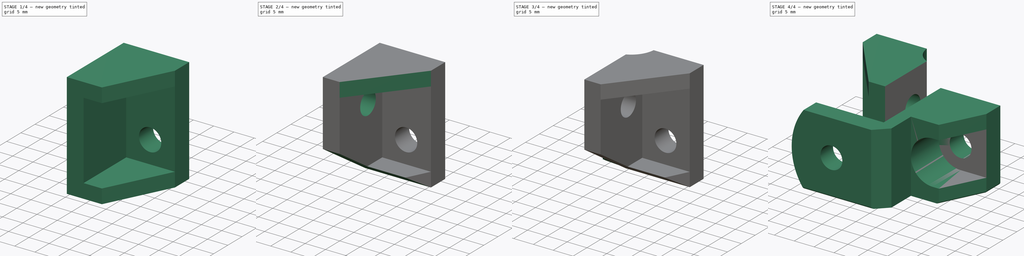
[diagram: build sequence overview — one tinted view per stage of 4, left to right]
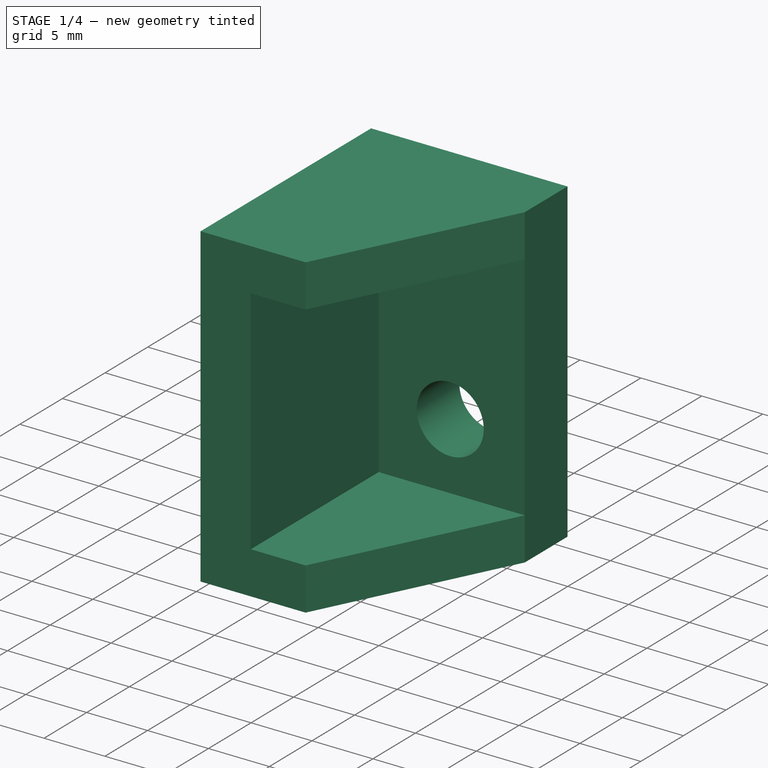
[diagram: stage 1 of 4 — iso view after this stage's code; geometry added in this stage tinted green]
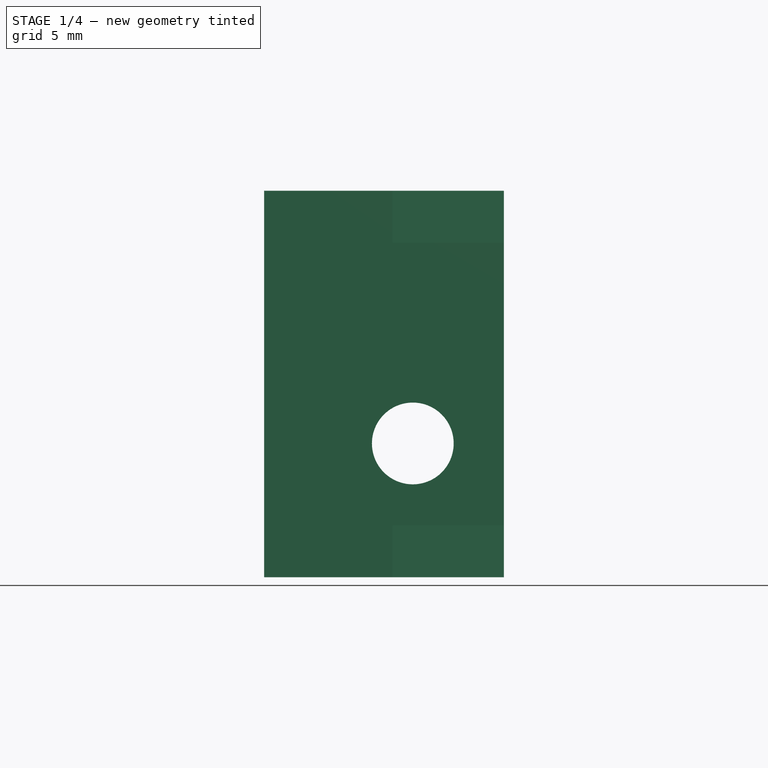
[diagram: stage 1 of 4 — front view after this stage's code; geometry added in this stage tinted green]
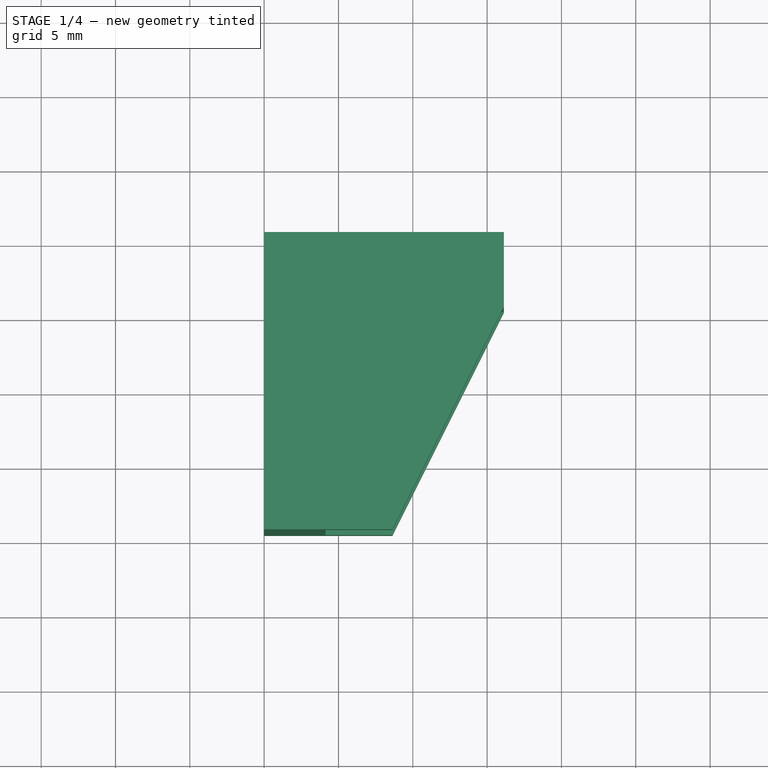
[diagram: stage 1 of 4 — top view after this stage's code; geometry added in this stage tinted green]
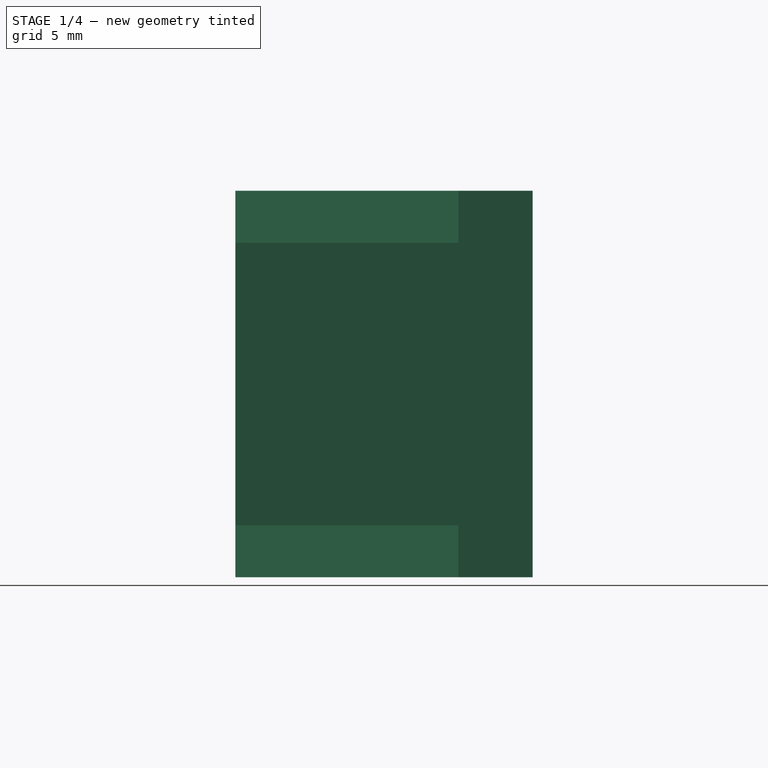
[diagram: stage 1 of 4 — right view after this stage's code; geometry added in this stage tinted green]
FCSTD DOCUMENT  (FreeCAD 0.17R11850 (Git))
Label: electronics_chassis_mount_front_v1
License: All rights reserved
LicenseURL: http://en.wikipedia.org/wiki/All_rights_reserved
objects: Sketcher::SketchObject×8, PartDesign::Pocket×6, PartDesign::Pad×2, Part::FeaturePython×1, PartDesign::Chamfer×1, PartDesign::Fillet×1, PartDesign::Body×1, Part::Mirroring×1
note: 29 computed .brp shape members not serialized (recipe doc carries the construction recipe); baked Part::Feature solids carry a one-line shape summary decoded from their .brp

FEATURE [Sketcher::SketchObject] Sketch
  MapMode = 5
  Support = -> [XY_Plane]
  sketch-geometry (5):
    g0: LineSegment StartX=0 StartY=20.5 StartZ=0 EndX=16.125 EndY=20.5 EndZ=0
    g1: LineSegment StartX=16.125 StartY=20.5 StartZ=0 EndX=16.125 EndY=15.5 EndZ=0
    g2: LineSegment StartX=16.125 StartY=15.5 StartZ=0 EndX=8.625 EndY=0.5 EndZ=0
    g3: LineSegment StartX=8.625 StartY=0.5 StartZ=0 EndX=0 EndY=0.5 EndZ=0
    g4: LineSegment StartX=0 StartY=0.5 StartZ=0 EndX=0 EndY=20.5 EndZ=0
  constraints (15):
    c: PointOnObject(g0,g-2)
    c: Horizontal(g0)
    c: Coincident(g0,g1)
    c: Vertical(g1)
    c: Coincident(g1,g2)
    c: Coincident(g2,g3)
    c: PointOnObject(g3,g-2)
    c: Horizontal(g3)
    c: Coincident(g3,g4)
    c: Coincident(g4,g0)
    c: DistanceY(g4,g4) = 20
    c: DistanceY(g3) = 0.5
    c: DistanceX(g0,g0) = 16.125
    c: DistanceY(g1,g1) = 5
    c: DistanceX(g3,g3) = 8.625
FEATURE [PartDesign::Pad] Pad
  Length = 26
  Length2 = 100
  Profile = -> Sketch
  Type = 0
FEATURE [Sketcher::SketchObject] Sketch001
  ExternalGeometry = -> [Pad]
  MapMode = 5
  Placement = pos=(0,0.5,0) rot=(1,0,0;1.5708rad)
  Support = -> [Pad]
  sketch-geometry (4):
    g0: LineSegment StartX=16.125 StartY=3.5 StartZ=0 EndX=4.125 EndY=3.5 EndZ=0
    g1: LineSegment StartX=4.125 StartY=3.5 StartZ=0 EndX=4.125 EndY=22.5 EndZ=0
    g2: LineSegment StartX=4.125 StartY=22.5 StartZ=0 EndX=16.125 EndY=22.5 EndZ=0
    g3: LineSegment StartX=16.125 StartY=22.5 StartZ=0 EndX=16.125 EndY=3.5 EndZ=0
  constraints (12):
    c: Coincident(g0,g1)
    c: Coincident(g1,g2)
    c: Coincident(g2,g3)
    c: Coincident(g3,g0)
    c: Horizontal(g0)
    c: Horizontal(g2)
    c: Vertical(g1)
    c: Vertical(g3)
    c: PointOnObject(g0,g-4)
    c: DistanceY(g-4,g0) = 3.5
    c: DistanceY(g3,g3) = 19
    c: DistanceX(g2,g2) = 12
FEATURE [PartDesign::Pocket] Pocket
  BaseFeature = -> Pad
  Length = 15
  Profile = -> Sketch001
  Type = 0
FEATURE [Sketcher::SketchObject] Sketch003
  ExternalGeometry = -> [Pocket]
  MapMode = 5
  Placement = pos=(0,15.5,0) rot=(1,0,0;1.5708rad)
  Support = -> [Pocket]
  sketch-geometry (1):
    g0: Circle CenterX=10 CenterY=9 CenterZ=0 NormalX=0 NormalY=0 NormalZ=1 Radius=2.75
  constraints (3):
    c: DistanceY(g-3,g0) = 5.5
    c: Radius(g0) = 2.75
    c: DistanceX(g0) = 10
FEATURE [PartDesign::Pocket] Pocket001
  BaseFeature = -> Pocket
  Length = 5
  Profile = -> Sketch003
  Type = 0
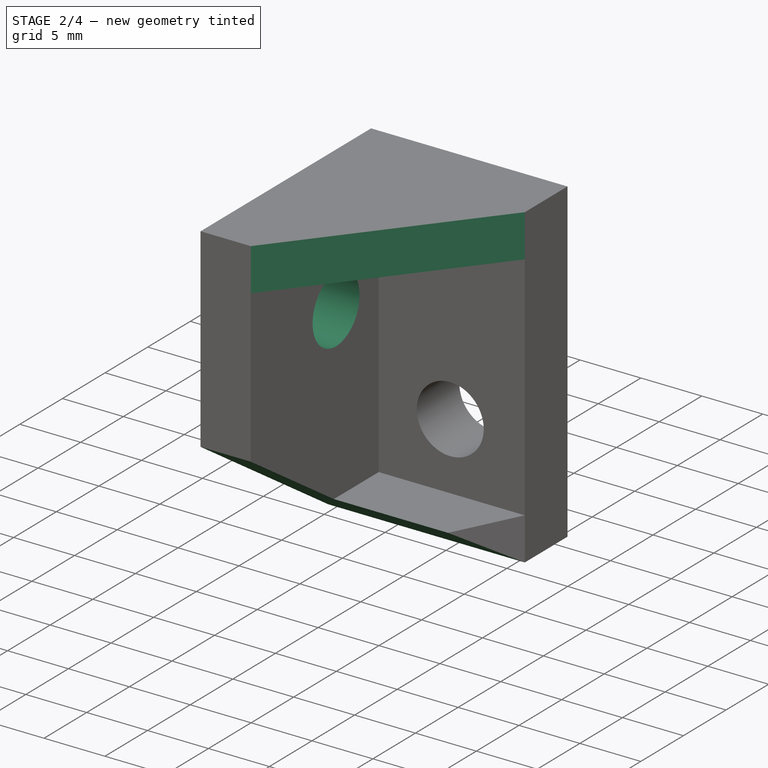
[diagram: stage 2 of 4 — iso view after this stage's code; geometry added in this stage tinted green]
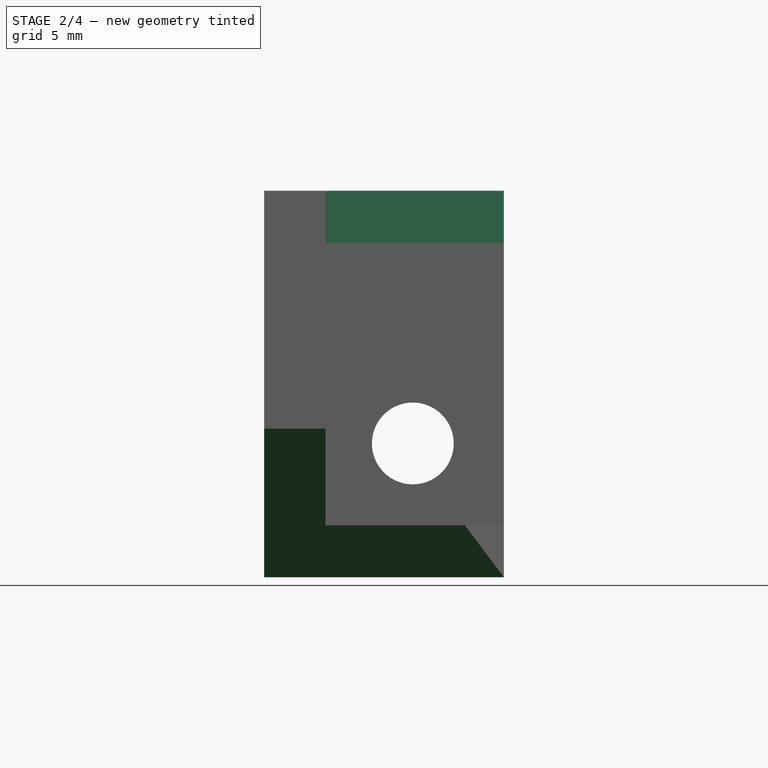
[diagram: stage 2 of 4 — front view after this stage's code; geometry added in this stage tinted green]
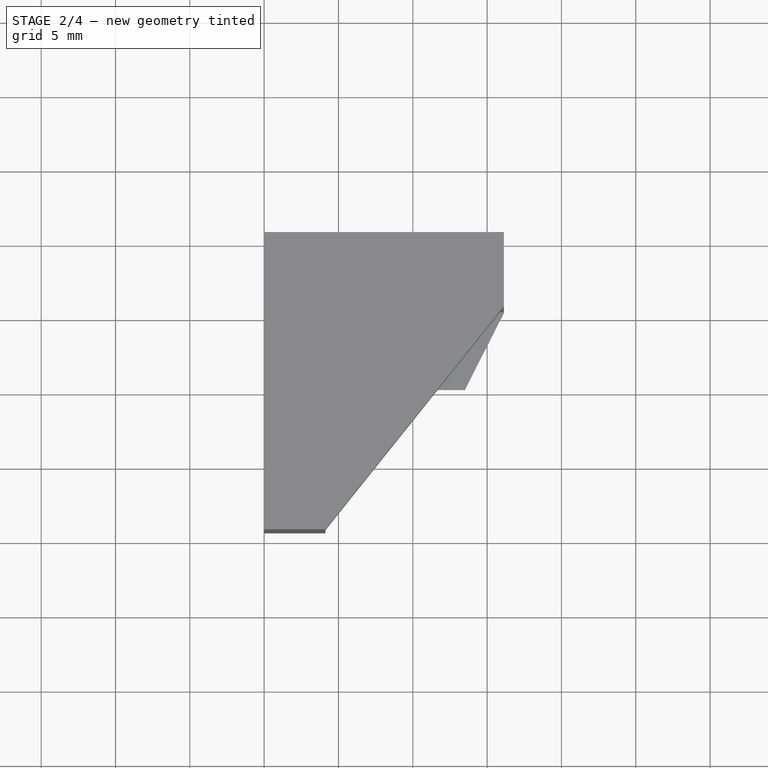
[diagram: stage 2 of 4 — top view after this stage's code; geometry added in this stage tinted green]
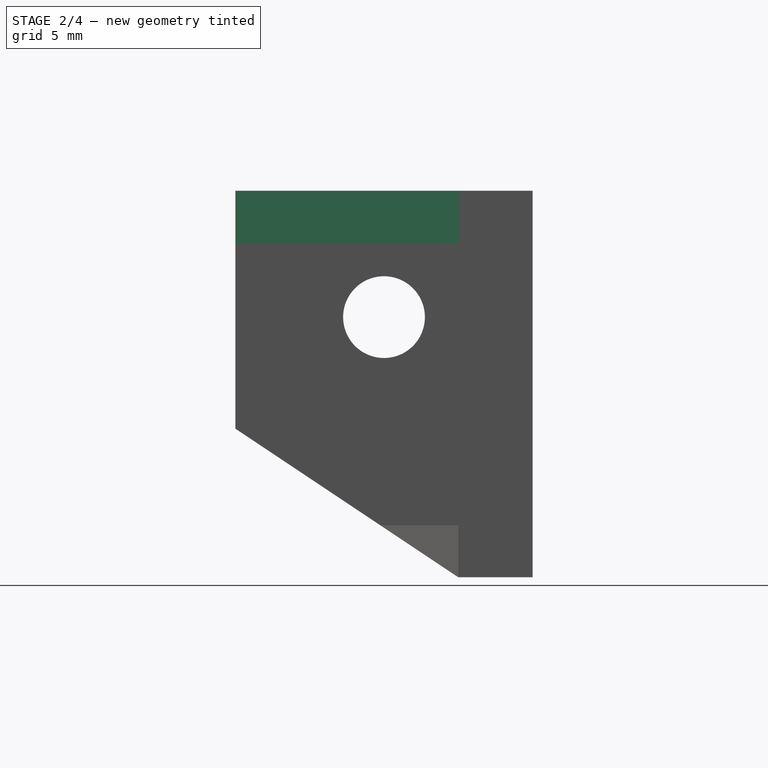
[diagram: stage 2 of 4 — right view after this stage's code; geometry added in this stage tinted green]
FEATURE [Sketcher::SketchObject] Sketch004
  ExternalGeometry = -> [Pocket001]
  MapMode = 5
  Placement = pos=(16.125,0,0) rot=(0.57735,0.57735,0.57735;2.0944rad)
  Support = -> [Pocket001]
  sketch-geometry (3):
    g0: LineSegment [constr] StartX=15.5 StartY=9 StartZ=0 EndX=15.5 EndY=13.5 EndZ=0
    g1: Circle [constr] CenterX=10.5 CenterY=17.5 CenterZ=0 NormalX=0 NormalY=0 NormalZ=1 Radius=4.5
    g2: Circle CenterX=10.5 CenterY=17.5 CenterZ=0 NormalX=0 NormalY=0 NormalZ=1 Radius=2.75
  constraints (8):
    c: Coincident(g0,g-3)
    c: Vertical(g0)
    c: DistanceY(g0,g0) = 4.5
    c: Radius(g1) = 4.5
    c: DistanceX(g1,g-5) = 10
    c: DistanceY(g1) = 17.5
    c: Coincident(g2,g1)
    c: Radius(g2) = 2.75
FEATURE [PartDesign::Pocket] Pocket002
  BaseFeature = -> Pocket001
  Length = 5
  Profile = -> Sketch004
  Type = 1
FEATURE [Sketcher::SketchObject] Sketch005
  ExternalGeometry = -> [Pocket002]
  MapMode = 5
  Placement = pos=(16.125,0,0) rot=(0.57735,0.57735,0.57735;2.0944rad)
  Support = -> [Pocket002]
  sketch-geometry (3):
    g0: LineSegment StartX=15.5 StartY=0 StartZ=0 EndX=0.5 EndY=10 EndZ=0
    g1: LineSegment StartX=0.5 StartY=10 StartZ=0 EndX=0.5 EndY=0 EndZ=0
    g2: LineSegment StartX=0.5 StartY=0 StartZ=0 EndX=15.5 EndY=0 EndZ=0
  constraints (4):
    c: Coincident(g0,g1)
    c: Coincident(g1,g2)
    c: Coincident(g2,g0)
    c: DistanceY(g1,g1) = 10
FEATURE [PartDesign::Pocket] Pocket003
  BaseFeature = -> Pocket002
  Length = 5
  Profile = -> Sketch005
  Type = 1
FEATURE [Sketcher::SketchObject] Sketch006
  ExternalGeometry = -> [Pocket003]
  MapMode = 5
  Placement = pos=(0,0,26) rot=(0,0,1;0rad)
  Support = -> [Pocket003]
  sketch-geometry (3):
    g0: LineSegment StartX=4.125 StartY=0.5 StartZ=0 EndX=16.125 EndY=15.5 EndZ=0
    g1: LineSegment StartX=16.125 StartY=15.5 StartZ=0 EndX=8.625 EndY=0.5 EndZ=0
    g2: LineSegment StartX=8.625 StartY=0.5 StartZ=0 EndX=4.125 EndY=0.5 EndZ=0
  constraints (3):
    c: Coincident(g0,g1)
    c: Coincident(g1,g2)
    c: Coincident(g2,g0)
FEATURE [PartDesign::Pocket] Pocket004
  BaseFeature = -> Pocket003
  Length = 5
  Profile = -> Sketch006
  Type = 0
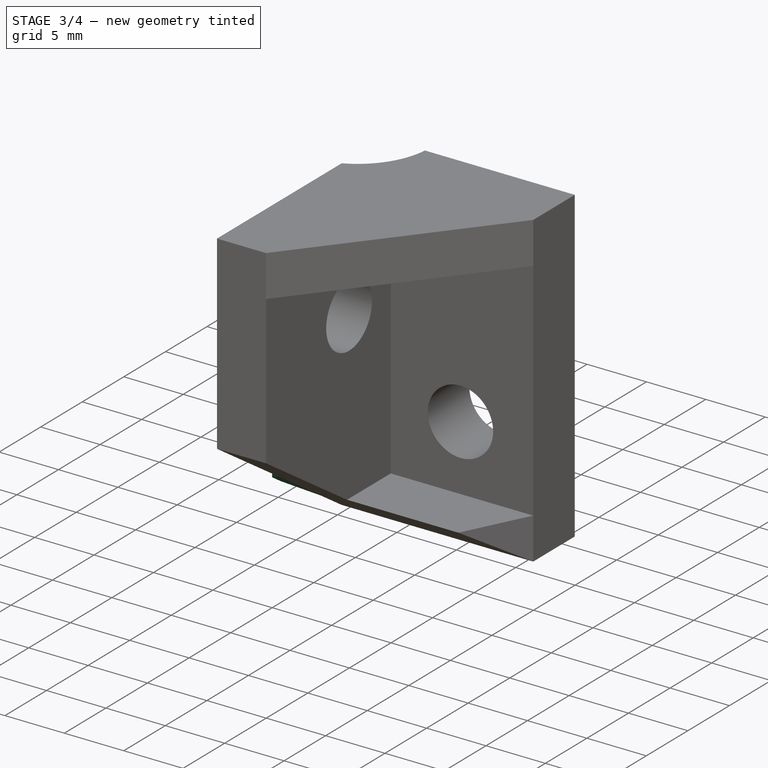
[diagram: stage 3 of 4 — iso view after this stage's code; geometry added in this stage tinted green]
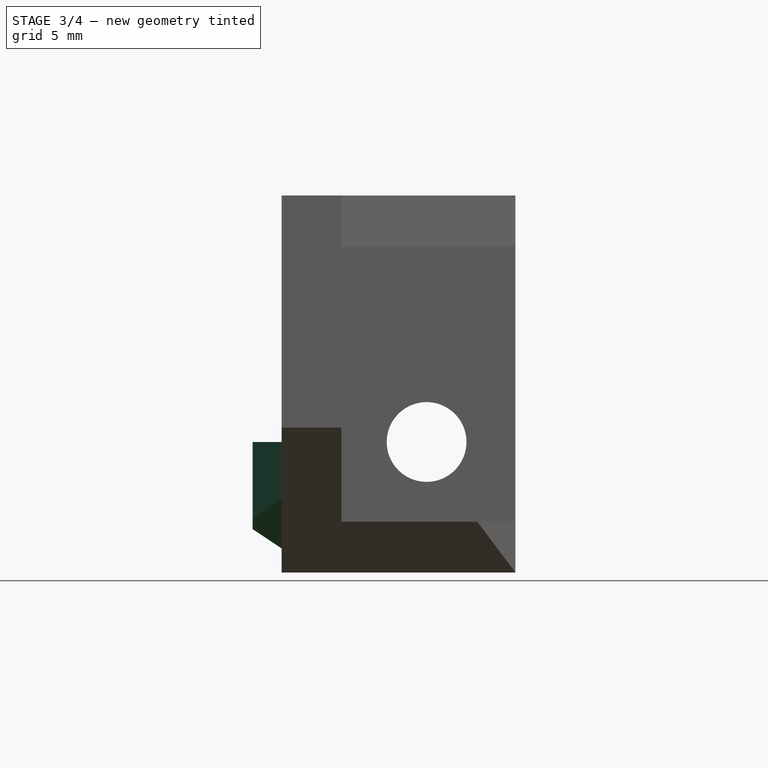
[diagram: stage 3 of 4 — front view after this stage's code; geometry added in this stage tinted green]
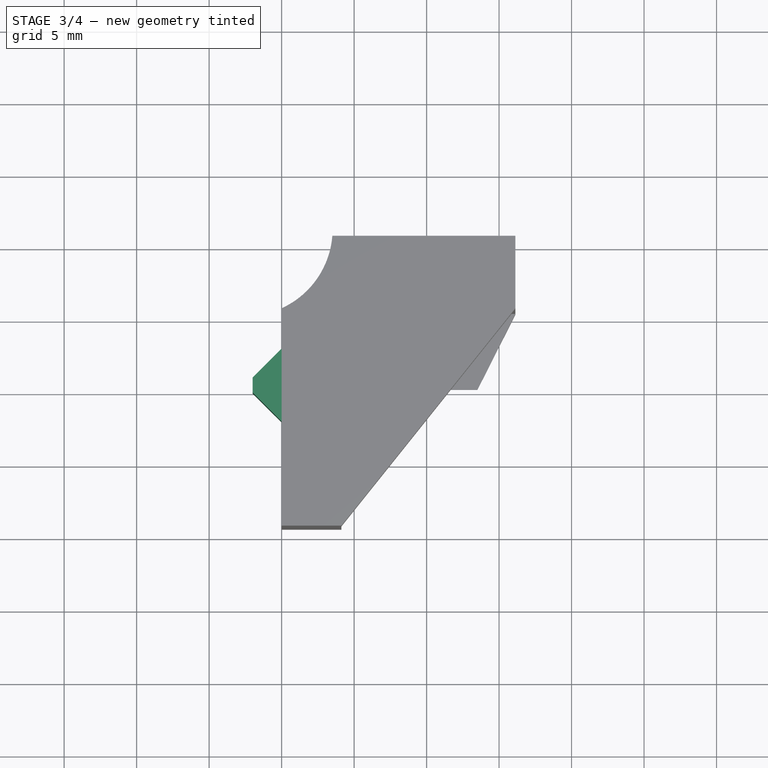
[diagram: stage 3 of 4 — top view after this stage's code; geometry added in this stage tinted green]
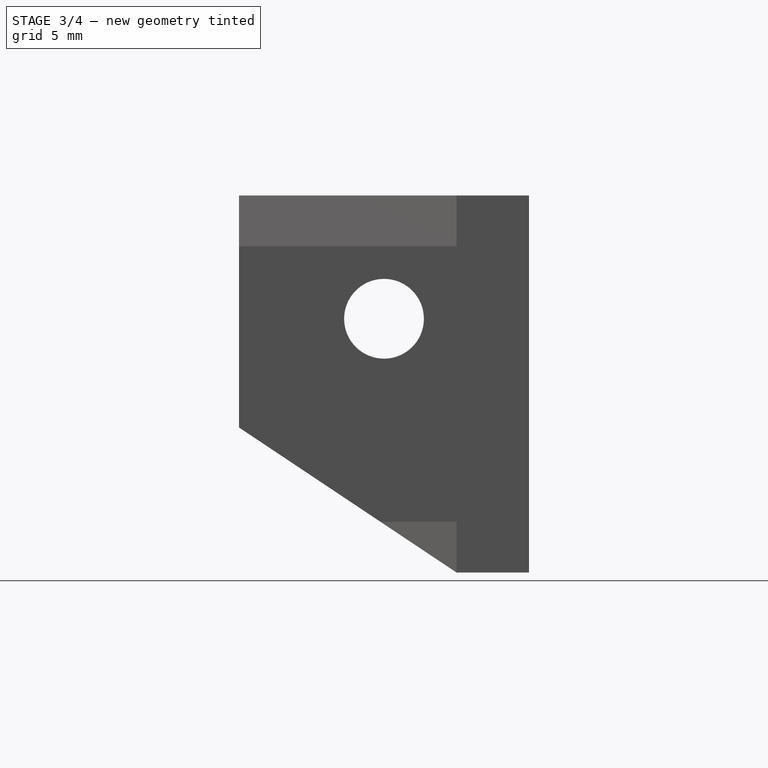
[diagram: stage 3 of 4 — right view after this stage's code; geometry added in this stage tinted green]
FEATURE [Sketcher::SketchObject] Sketch007
  ExternalGeometry = -> [Pocket004]
  MapMode = 5
  Placement = pos=(0,0,0) rot=(0.57735,-0.57735,-0.57735;2.0944rad)
  Support = -> [Pocket004]
  sketch-geometry (4):
    g0: LineSegment StartX=-13 StartY=1.66667 StartZ=0 EndX=-13 EndY=9 EndZ=0
    g1: LineSegment StartX=-13 StartY=9 StartZ=0 EndX=-8 EndY=9 EndZ=0
    g2: LineSegment StartX=-8 StartY=9 StartZ=0 EndX=-8 EndY=5 EndZ=0
    g3: LineSegment StartX=-8 StartY=5 StartZ=0 EndX=-13 EndY=1.66667 EndZ=0
  constraints (12):
    c: Coincident(g0,g1)
    c: Coincident(g1,g2)
    c: Coincident(g2,g3)
    c: Coincident(g0,g3)
    c: Vertical(g0)
    c: Vertical(g2)
    c: Horizontal(g1)
    c: DistanceX(g1,g1) = 5
    c: DistanceY(g2,g2) = 4
    c: PointOnObject(g2,g-4)
    c: PointOnObject(g0,g-4)
    c: DistanceX(g-3,g1) = 2.5
FEATURE [PartDesign::Pad] Pad001
  BaseFeature = -> Pocket004
  Length = 2
  Length2 = 100
  Profile = -> Sketch007
  Type = 0
FEATURE [Sketcher::SketchObject] Sketch008
  ExternalGeometry = -> [Pad001]
  MapMode = 5
  Placement = pos=(0,0,0) rot=(1,0,0;3.14159rad)
  Support = -> [Pad001]
  sketch-geometry (3):
    g0: ArcOfCircle CenterX=-2.48215 CenterY=-20.9625 CenterZ=0 NormalX=0 NormalY=0 NormalZ=1 Radius=6 StartAngle=0.0771604 EndAngle=1.14429
    g1: LineSegment StartX=-2e-12 StartY=-15.5 StartZ=0 EndX=0 EndY=-20.5 EndZ=0
    g2: LineSegment StartX=0 StartY=-20.5 StartZ=0 EndX=3.5 EndY=-20.5 EndZ=0
  constraints (8):
    c: Coincident(g0,g-3)
    c: PointOnObject(g0,g-4)
    c: Coincident(g1,g2)
    c: Coincident(g0,g2)
    c: Coincident(g1,g-4)
    c: DistanceX(g2,g2) = 3.5
    c: Radius(g0) = 6
    c: Coincident(g0,g1)
FEATURE [PartDesign::Pocket] Pocket005
  BaseFeature = -> Pad001
  Length = 5
  Profile = -> Sketch008
  Type = 1
FEATURE [PartDesign::Chamfer] Chamfer
  Base = -> Pocket005 [Edge51,Edge48]
  BaseFeature = -> Pocket005
  Size = 1.99
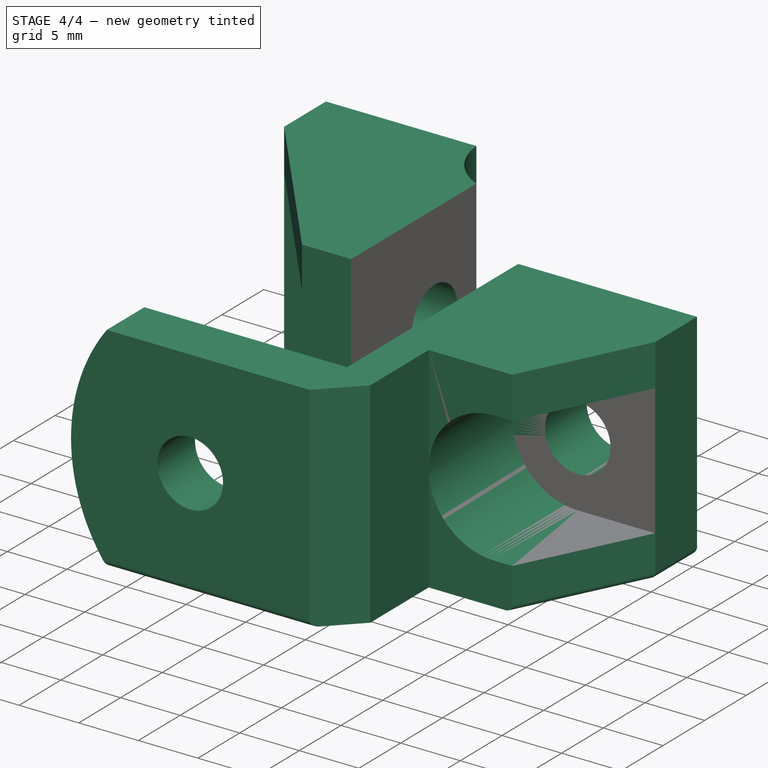
[diagram: stage 4 of 4 — iso view after this stage's code; geometry added in this stage tinted green]
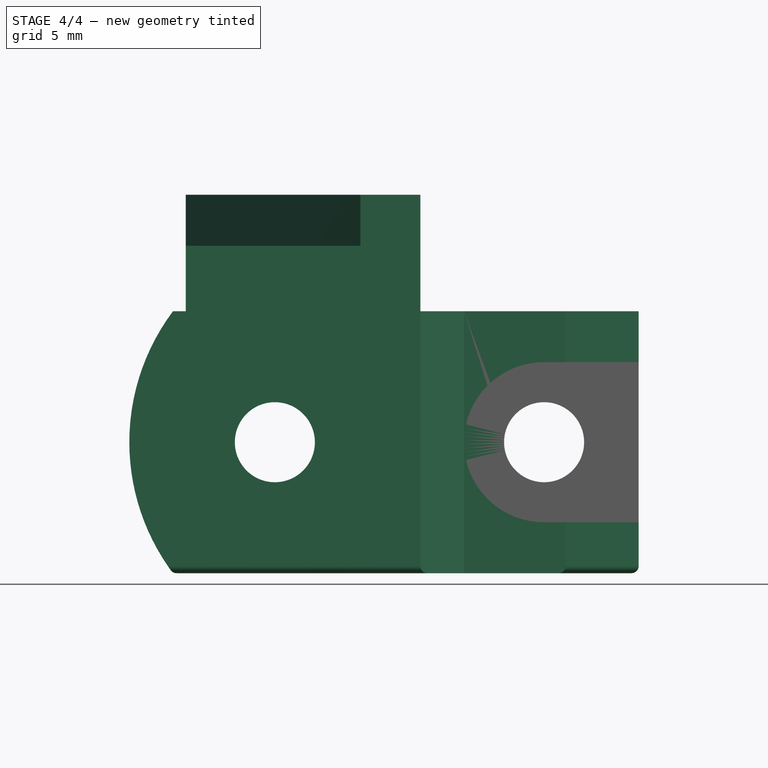
[diagram: stage 4 of 4 — front view after this stage's code; geometry added in this stage tinted green]
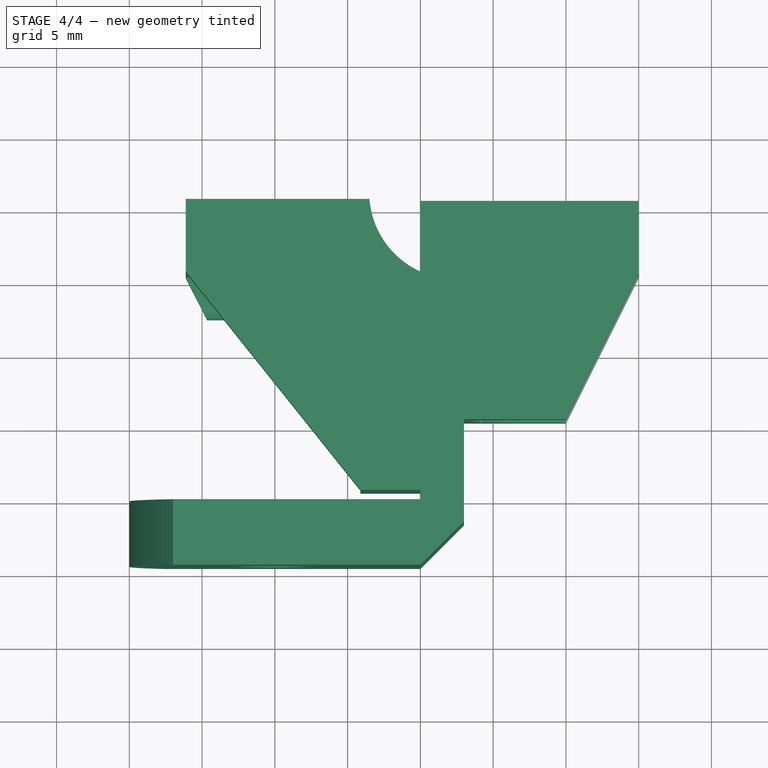
[diagram: stage 4 of 4 — top view after this stage's code; geometry added in this stage tinted green]
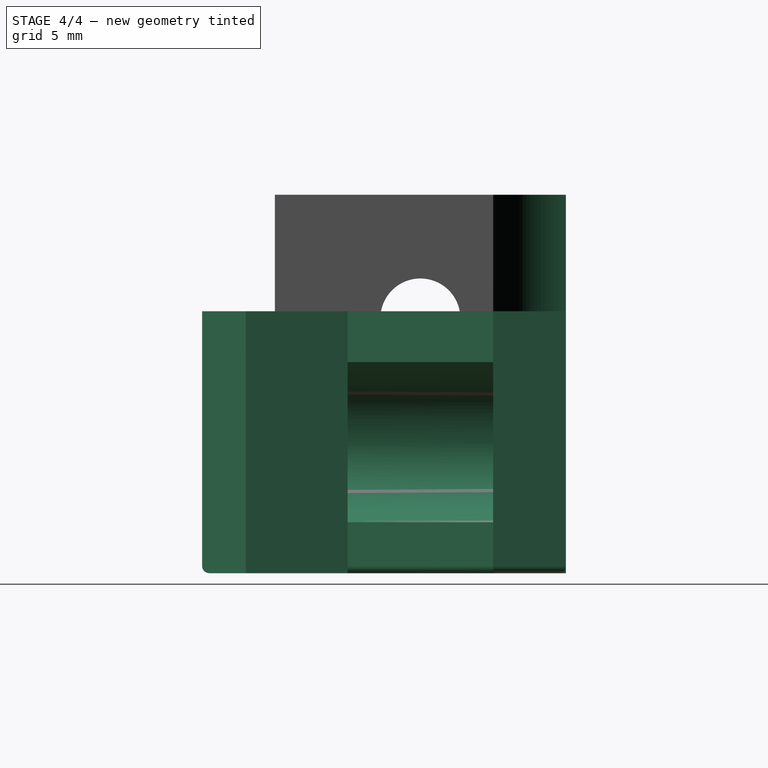
[diagram: stage 4 of 4 — right view after this stage's code; geometry added in this stage tinted green]
FEATURE [Part::FeaturePython] electronics_chassis_mount_01  # a2plus imported part (geometry in sourceFile) (typed FeaturePython)
  fixedPosition = true
  sourceFile = <userpath>/Projects/taz-quiver/Production_parts/Printed_parts/X/electronics_chassis_mount/electronics_chassis_mount.fcstd
  timeLastImport = 1.5138e+09
  updateColors = true
FEATURE [PartDesign::Fillet] Fillet
  Base = -> Chamfer [Edge14,Edge17]
  BaseFeature = -> Chamfer
  Radius = 1
FEATURE [PartDesign::Body] Body
  Group = -> [Sketch,Pad,Sketch001,Pocket,Sketch003,Pocket001,Sketch004,Pocket002,Sketch005,Pocket003,Sketch006,Pocket004,Sketch007,Pad001,Sketch008,Pocket005,Chamfer,Fillet]
  Origin = -> Origin
  Tip = -> Fillet
FEATURE [Part::Mirroring] Part__Mirroring  label="Fillet (Mirror #1)"
  Base = (0,0,0)
  Normal = (1,0,0)
  Source = -> Fillet
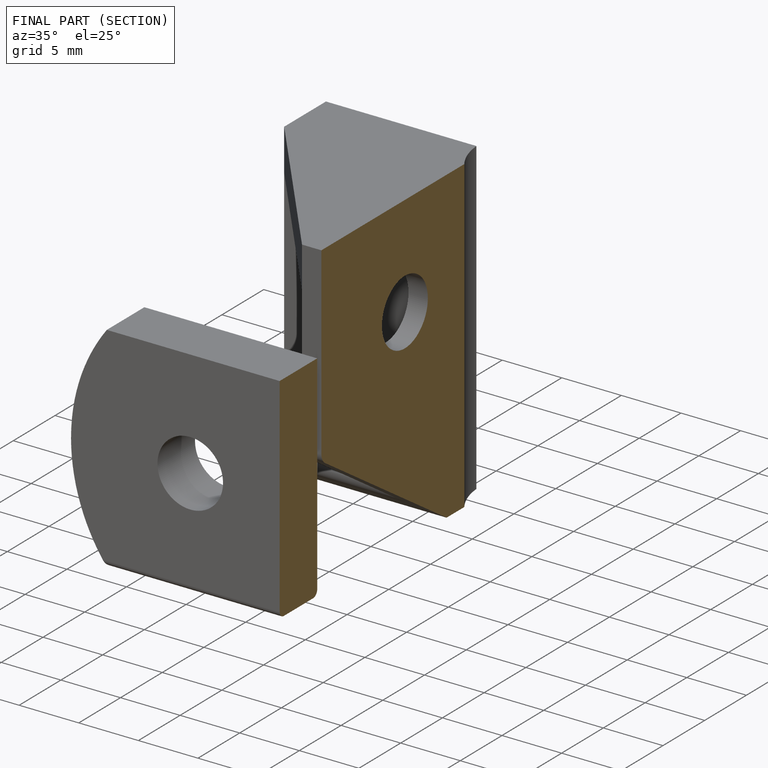
[diagram: finished part — half-section view (interior)]
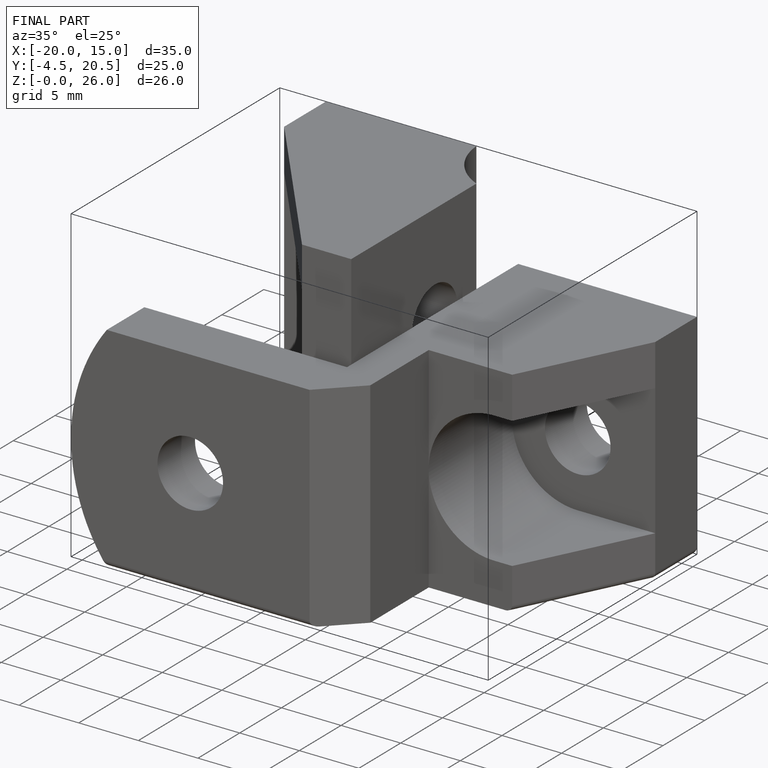
[diagram: finished part — iso view with bounding-box wireframe]
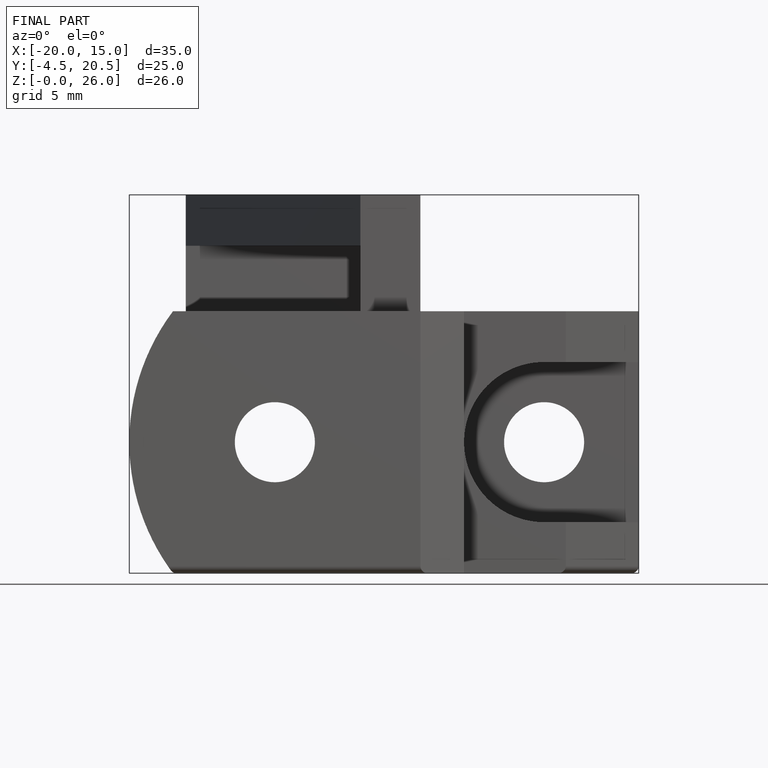
[diagram: finished part — front view with bounding-box wireframe]
